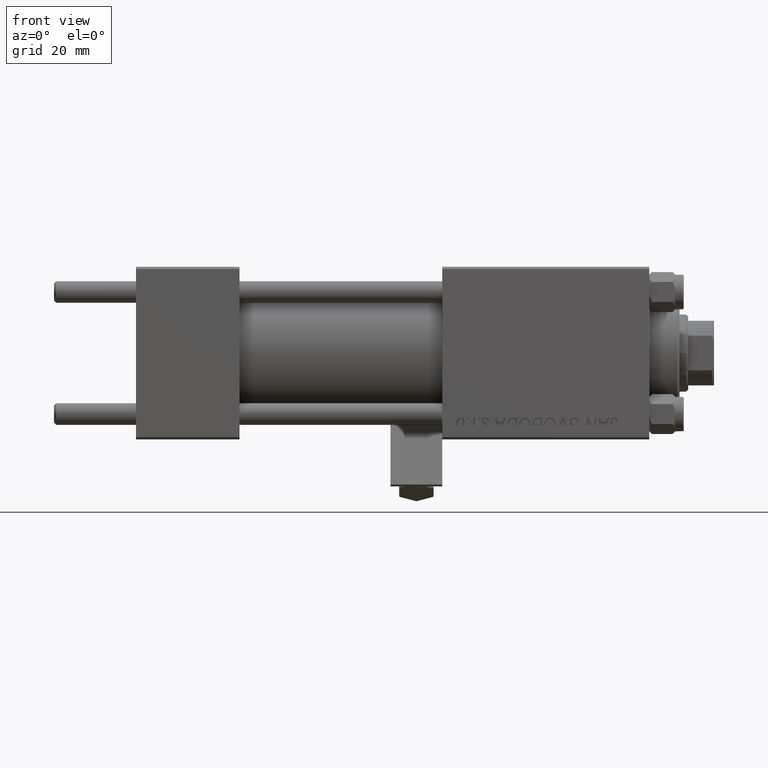
[diagram: clean part render]
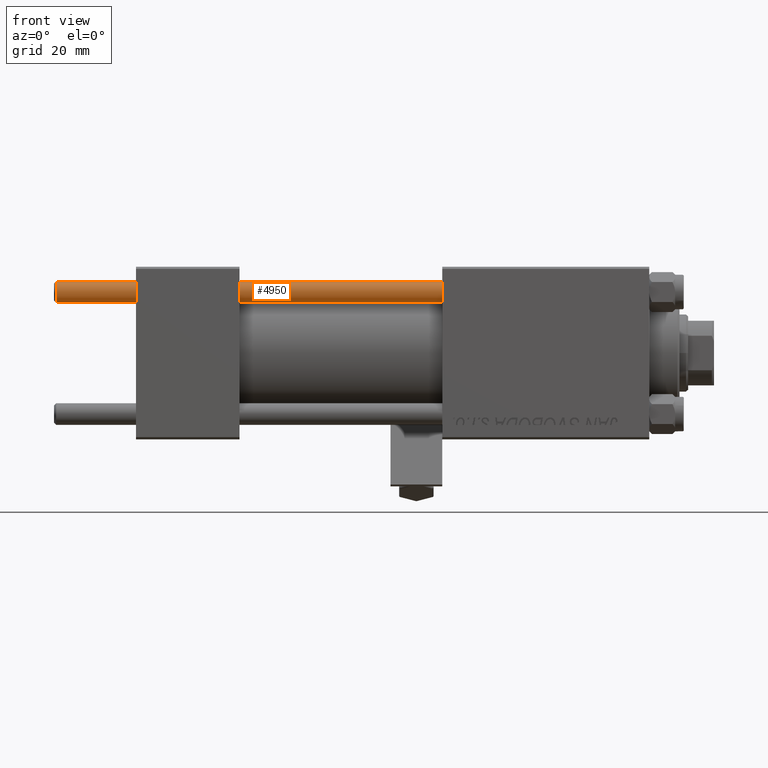
[diagram: same view with one face highlighted and labeled with its STEP entity id]
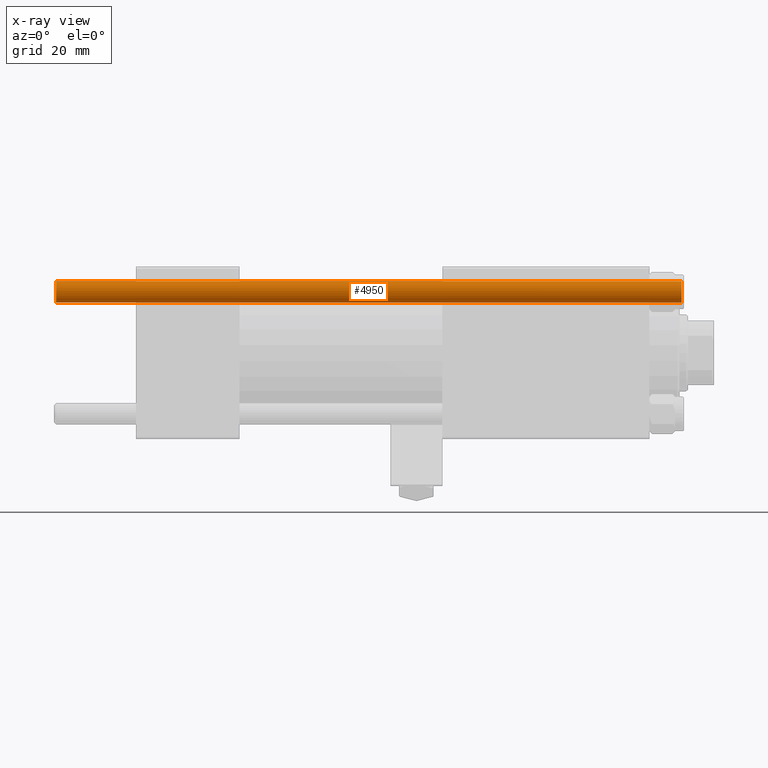
[diagram: x-ray of the same camera — body ghosted, the highlighted face saturated]
A machine part, front view. The second image highlights one B-rep face of the part: STEP entity #4950.
The next image is the same camera in x-ray: the body ghosted, the highlighted face saturated — about 0% of this face is hidden behind the body in this view.
In plain terms, the highlighted cylindrical surface (edge-blend (fillet) strip) has radius 2.5 mm, axis along (1, -0, 0).
Its self-contained STEP definition (entity closure, byte-faithful):
#3376 = EDGE_CURVE ( 'NONE', #9703, #27393, #6113, .T. ) ;
#4242 = VECTOR ( 'NONE', #44649, 1000.000000000000000 ) ;
#4950 = ADVANCED_FACE ( 'NONE', ( #44166 ), #24642, .T. ) ;
#5362 = VERTEX_POINT ( 'NONE', #47131 ) ;
#6073 = AXIS2_PLACEMENT_3D ( 'NONE', #36793, #32926, #28317 ) ;
#6113 = LINE ( 'NONE', #18435, #4242 ) ;
#9703 = VERTEX_POINT ( 'NONE', #30786 ) ;
#10366 = ORIENTED_EDGE ( 'NONE', *, *, #15491, .T. ) ;
#15397 = CARTESIAN_POINT ( 'NONE',  ( -2.500000000000000000, 0.000000000000000000, 146.0000000000000000 ) ) ;
#15491 = EDGE_CURVE ( 'NONE', #21622, #9703, #29030, .T. ) ;
#15641 = DIRECTION ( 'NONE',  ( -0.000000000000000000, -0.000000000000000000, -1.000000000000000000 ) ) ;
#17078 = ORIENTED_EDGE ( 'NONE', *, *, #3376, .T. ) ;
#18435 = CARTESIAN_POINT ( 'NONE',  ( 2.500000000000000000, 3.061616997868383141E-16, 146.0000000000000000 ) ) ;
#20783 = CARTESIAN_POINT ( 'NONE',  ( 0.000000000000000000, 0.000000000000000000, 146.0000000000000000 ) ) ;
#21203 = ORIENTED_EDGE ( 'NONE', *, *, #45068, .T. ) ;
#21622 = VERTEX_POINT ( 'NONE', #31346 ) ;
#22299 = DIRECTION ( 'NONE',  ( -1.000000000000000000, 0.000000000000000000, 0.000000000000000000 ) ) ;
#22923 = EDGE_LOOP ( 'NONE', ( #10366, #17078, #21203, #42699 ) ) ;
#24642 = CYLINDRICAL_SURFACE ( 'NONE', #30564, 2.500000000000000000 ) ;
#27393 = VERTEX_POINT ( 'NONE', #34165 ) ;
#28317 = DIRECTION ( 'NONE',  ( 1.000000000000000000, 0.000000000000000000, 0.000000000000000000 ) ) ;
#29030 = CIRCLE ( 'NONE', #6073, 2.500000000000000000 ) ;
#30564 = AXIS2_PLACEMENT_3D ( 'NONE', #20783, #36722, #22299 ) ;
#30786 = CARTESIAN_POINT ( 'NONE',  ( 2.500000000000000000, 3.061616997868383141E-16, 145.5000000000000284 ) ) ;
#31346 = CARTESIAN_POINT ( 'NONE',  ( -2.500000000000000000, 0.000000000000000000, 145.5000000000000284 ) ) ;
#32926 = DIRECTION ( 'NONE',  ( 0.000000000000000000, 0.000000000000000000, -1.000000000000000000 ) ) ;
#34165 = CARTESIAN_POINT ( 'NONE',  ( 2.500000000000000000, 3.061616997868383141E-16, 0.5000000000000559552 ) ) ;
#34582 = DIRECTION ( 'NONE',  ( 1.000000000000000000, 0.000000000000000000, 0.000000000000000000 ) ) ;
#35697 = AXIS2_PLACEMENT_3D ( 'NONE', #38442, #46130, #34582 ) ;
#35771 = VECTOR ( 'NONE', #15641, 1000.000000000000000 ) ;
#36722 = DIRECTION ( 'NONE',  ( -0.000000000000000000, -0.000000000000000000, -1.000000000000000000 ) ) ;
#36793 = CARTESIAN_POINT ( 'NONE',  ( 0.000000000000000000, 0.000000000000000000, 145.5000000000000284 ) ) ;
#38442 = CARTESIAN_POINT ( 'NONE',  ( 0.000000000000000000, 0.000000000000000000, 0.5000000000000559552 ) ) ;
#42699 = ORIENTED_EDGE ( 'NONE', *, *, #47319, .F. ) ;
#44166 = FACE_OUTER_BOUND ( 'NONE', #22923, .T. ) ;
#44649 = DIRECTION ( 'NONE',  ( -0.000000000000000000, -0.000000000000000000, -1.000000000000000000 ) ) ;
#45068 = EDGE_CURVE ( 'NONE', #27393, #5362, #47169, .T. ) ;
#46130 = DIRECTION ( 'NONE',  ( -0.000000000000000000, -0.000000000000000000, 1.000000000000000000 ) ) ;
#46480 = LINE ( 'NONE', #15397, #35771 ) ;
#47131 = CARTESIAN_POINT ( 'NONE',  ( -2.500000000000000000, 0.000000000000000000, 0.5000000000000559552 ) ) ;
#47169 = CIRCLE ( 'NONE', #35697, 2.500000000000000000 ) ;
#47319 = EDGE_CURVE ( 'NONE', #21622, #5362, #46480, .T. ) ;